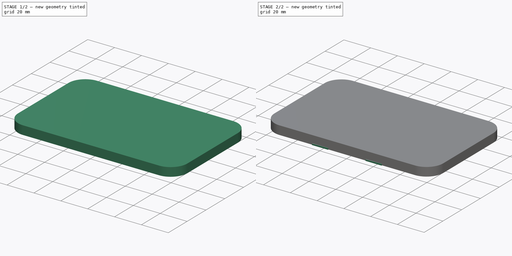
[diagram: build sequence overview — one tinted view per stage of 2, left to right]
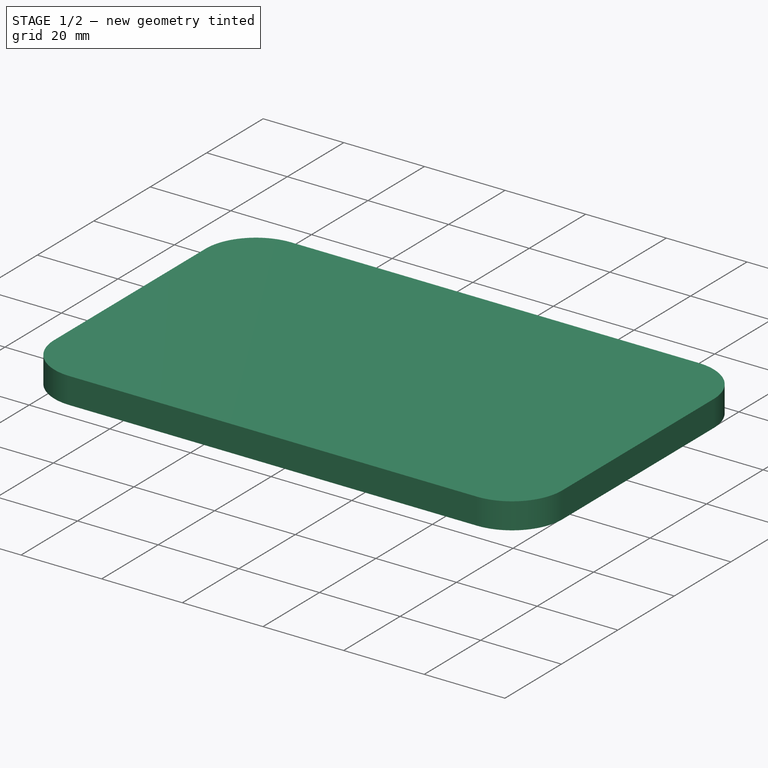
[diagram: stage 1 of 2 — iso view after this stage's code; geometry added in this stage tinted green]
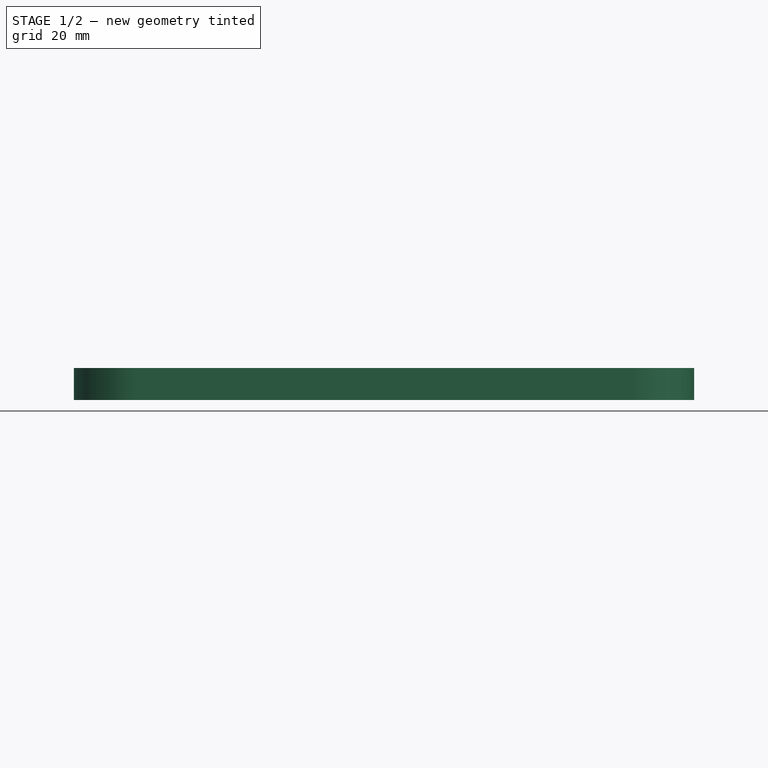
[diagram: stage 1 of 2 — front view after this stage's code; geometry added in this stage tinted green]
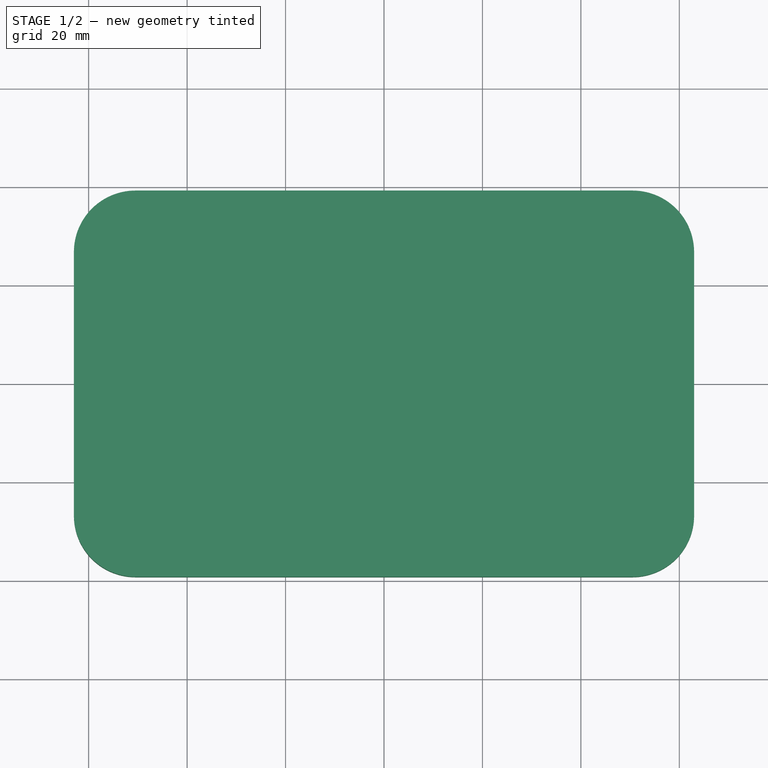
[diagram: stage 1 of 2 — top view after this stage's code; geometry added in this stage tinted green]
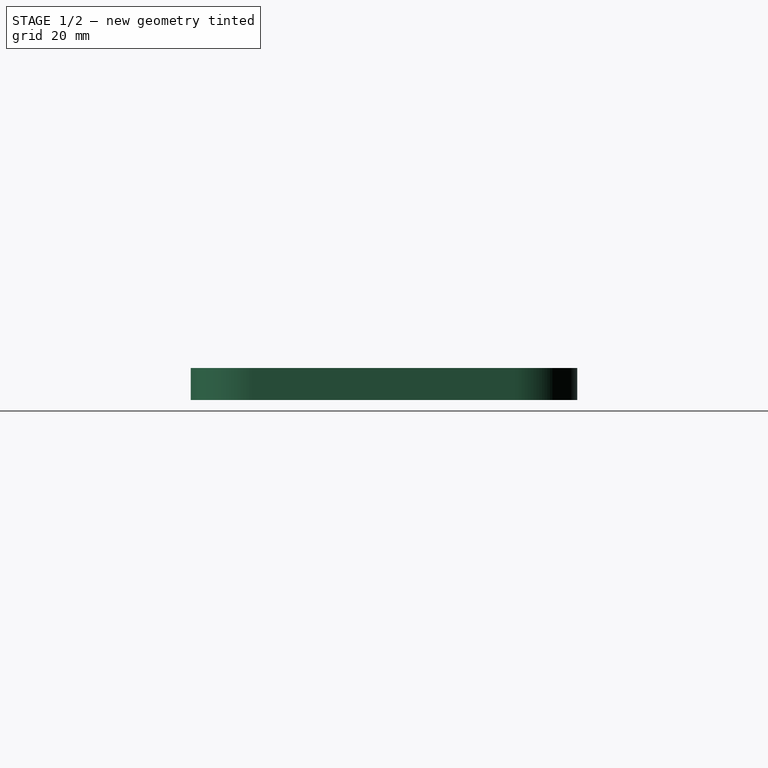
[diagram: stage 1 of 2 — right view after this stage's code; geometry added in this stage tinted green]
FCSTD DOCUMENT  (FreeCAD 0.21R33032 (Git))
Label: watermelon
License: All rights reserved
LicenseURL: https://en.wikipedia.org/wiki/All_rights_reserved
objects: PartDesign::Pad×3, Sketcher::SketchObject×2, PartDesign::Mirrored×1, PartDesign::Body×1
note: 10 computed .brp shape members not serialized (recipe doc carries the construction recipe); baked Part::Feature solids carry a one-line shape summary decoded from their .brp

FEATURE [Sketcher::SketchObject] Sketch
  FullyConstrained = true
  MapMode = 5
  Support = -> [XY_Plane]
  sketch-geometry (8):
    g0: LineSegment StartX=-50.5 StartY=39.25 StartZ=0 EndX=50.5 EndY=39.25 EndZ=0
    g1: LineSegment StartX=63 StartY=26.75 StartZ=0 EndX=63 EndY=-26.75 EndZ=0
    g2: LineSegment StartX=50.5 StartY=-39.25 StartZ=0 EndX=-50.5 EndY=-39.25 EndZ=0
    g3: LineSegment StartX=-63 StartY=-26.75 StartZ=0 EndX=-63 EndY=26.75 EndZ=0
    g4: ArcOfCircle CenterX=-50.5 CenterY=26.75 CenterZ=0 NormalX=0 NormalY=0 NormalZ=1 AngleXU=0 Radius=12.5 StartAngle=1.5708 EndAngle=3.14159
    g5: ArcOfCircle CenterX=50.5 CenterY=26.75 CenterZ=0 NormalX=0 NormalY=0 NormalZ=1 AngleXU=0 Radius=12.5 StartAngle=0 EndAngle=1.5708
    g6: ArcOfCircle CenterX=50.5 CenterY=-26.75 CenterZ=0 NormalX=0 NormalY=0 NormalZ=1 AngleXU=0 Radius=12.5 StartAngle=4.71239 EndAngle=6.28319
    g7: ArcOfCircle CenterX=-50.5 CenterY=-26.75 CenterZ=0 NormalX=0 NormalY=0 NormalZ=1 AngleXU=0 Radius=12.5 StartAngle=3.14159 EndAngle=4.71239
  constraints (19):
    c: Horizontal(g0)
    c: Horizontal(g2)
    c: Vertical(g1)
    c: Vertical(g3)
    c: Tangent(g0,g4) = 1.5708
    c: Tangent(g3,g4) = 1.5708
    c: Tangent(g0,g5) = 1.5708
    c: Tangent(g1,g5) = 1.5708
    c: Tangent(g1,g6) = 1.5708
    c: Tangent(g2,g6) = 1.5708
    c: Tangent(g2,g7) = 1.5708
    c: Tangent(g3,g7) = 1.5708
    c: Radius(g7) = 12.5
    c: Equal(g5,g6)
    c: Equal(g6,g7)
    c: Equal(g7,g4)
    c: DistanceX(g3,g1) = 126
    c: DistanceY(g2,g0) = 78.5
    c: Symmetric(g0,g2,g-1)
FEATURE [PartDesign::Pad] Pad
  Direction = (0,0,1)
  Length = 1
  Length2 = 10
  Profile = -> Sketch
  ReferenceAxis = -> Sketch [N_Axis]
  Type = 0
FEATURE [PartDesign::Pad] Pad001
  BaseFeature = -> Pad
  Direction = (0,0,1)
  Length = 6.5
  Length2 = 10
  Profile = -> Sketch
  ReferenceAxis = -> Sketch [N_Axis]
  Type = 0
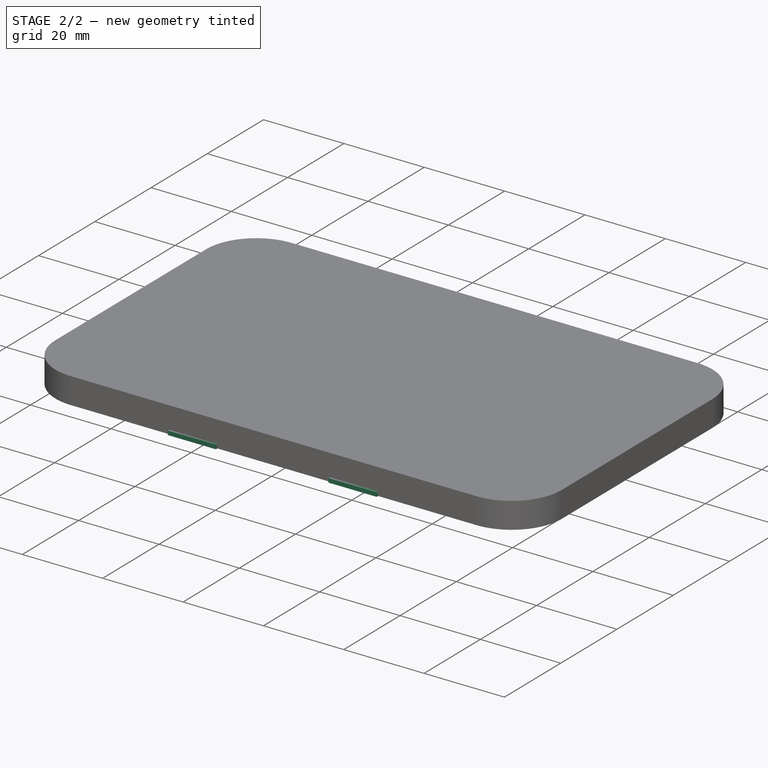
[diagram: stage 2 of 2 — iso view after this stage's code; geometry added in this stage tinted green]
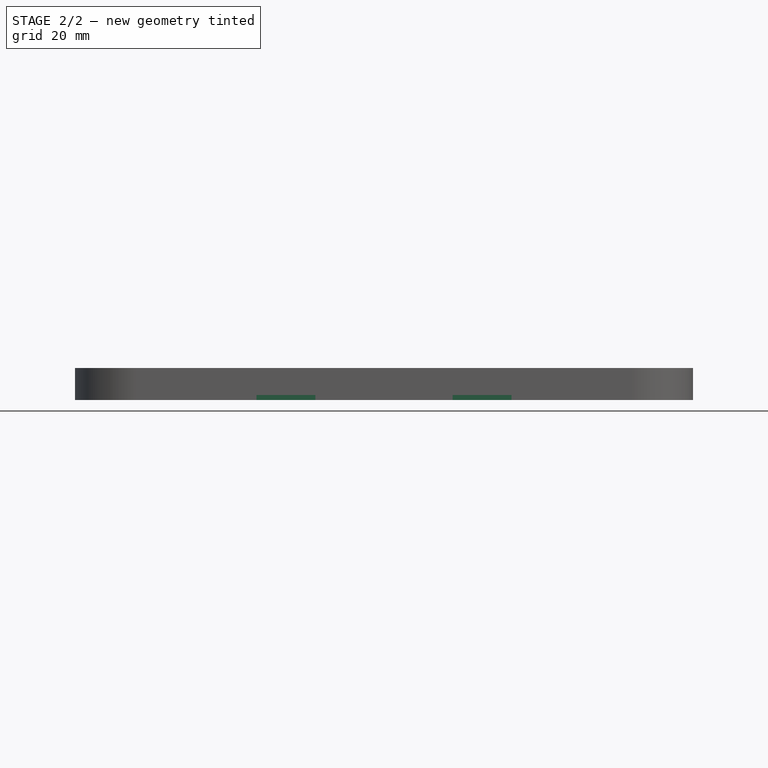
[diagram: stage 2 of 2 — front view after this stage's code; geometry added in this stage tinted green]
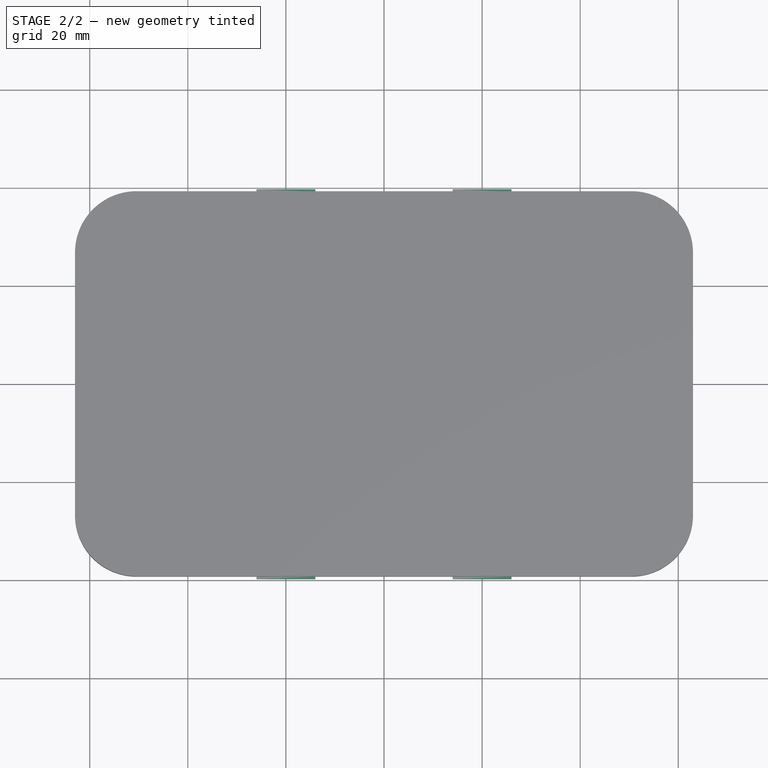
[diagram: stage 2 of 2 — top view after this stage's code; geometry added in this stage tinted green]
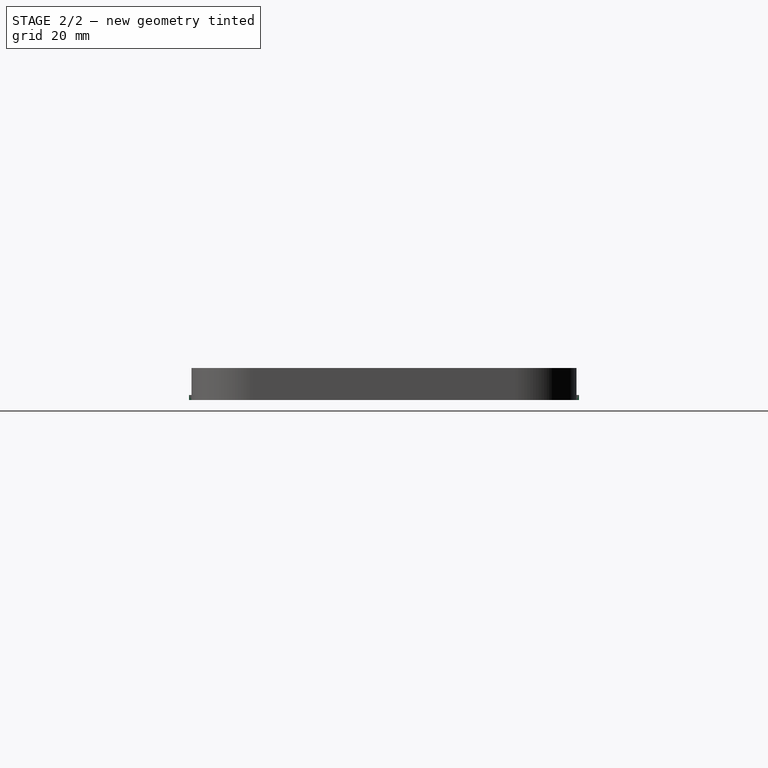
[diagram: stage 2 of 2 — right view after this stage's code; geometry added in this stage tinted green]
FEATURE [Sketcher::SketchObject] Sketch001
  ExternalGeometry = -> [Pad001]
  FullyConstrained = true
  MapMode = 5
  Placement = pos=(0,39.25,0) rot=(0,0.707107,0.707107;3.14159rad)
  Support = -> [Pad001]
  sketch-geometry (8):
    g0: LineSegment StartX=-26 StartY=0 StartZ=0 EndX=-14 EndY=0 EndZ=0
    g1: LineSegment StartX=-14 StartY=0 StartZ=0 EndX=-14 EndY=1 EndZ=0
    g2: LineSegment StartX=-14 StartY=1 StartZ=0 EndX=-26 EndY=1 EndZ=0
    g3: LineSegment StartX=-26 StartY=1 StartZ=0 EndX=-26 EndY=0 EndZ=0
    g4: LineSegment StartX=14 StartY=0 StartZ=0 EndX=26 EndY=0 EndZ=0
    g5: LineSegment StartX=26 StartY=0 StartZ=0 EndX=26 EndY=1 EndZ=0
    g6: LineSegment StartX=26 StartY=1 StartZ=0 EndX=14 EndY=1 EndZ=0
    g7: LineSegment StartX=14 StartY=1 StartZ=0 EndX=14 EndY=0 EndZ=0
  constraints (24):
    c: Coincident(g0,g1)
    c: Coincident(g1,g2)
    c: Coincident(g2,g3)
    c: Coincident(g3,g0)
    c: Horizontal(g0)
    c: Horizontal(g2)
    c: Vertical(g1)
    c: Vertical(g3)
    c: PointOnObject(g0,g-1)
    c: DistanceX(g0,g0) = 12
    c: DistanceY(g1,g1) = 1
    c: DistanceX(g0,g-1) = 14
    c: Coincident(g4,g5)
    c: Coincident(g5,g6)
    c: Coincident(g6,g7)
    c: Coincident(g7,g4)
    c: Horizontal(g4)
    c: Horizontal(g6)
    c: Vertical(g5)
    c: Vertical(g7)
    c: PointOnObject(g4,g-1)
    c: Equal(g5,g1)
    c: Equal(g6,g2)
    c: DistanceX(g-1,g4) = 14
FEATURE [PartDesign::Pad] Pad002
  BaseFeature = -> Pad001
  Direction = (0,1,-2e-16)
  Length = 0.5
  Length2 = 10
  Profile = -> Sketch001
  ReferenceAxis = -> Sketch001 [N_Axis]
  Type = 0
FEATURE [PartDesign::Mirrored] Mirrored
  BaseFeature = -> Pad002
  MirrorPlane = -> XZ_Plane
  Originals = -> [Pad002]
FEATURE [PartDesign::Body] Body
  Group = -> [Sketch,Pad,Pad001,Sketch001,Pad002,Mirrored]
  Origin = -> Origin
  Tip = -> Mirrored
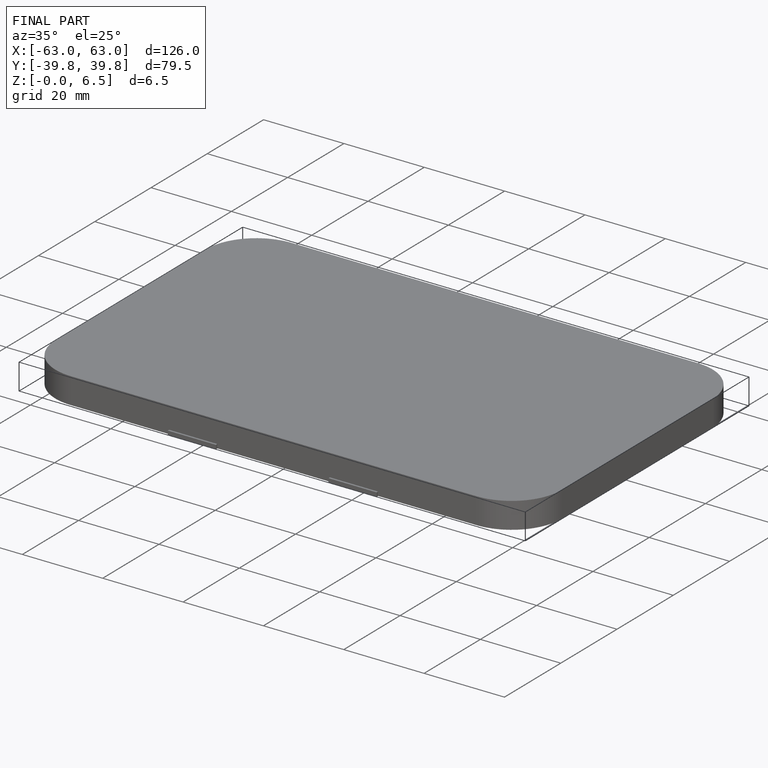
[diagram: finished part — iso view with bounding-box wireframe]
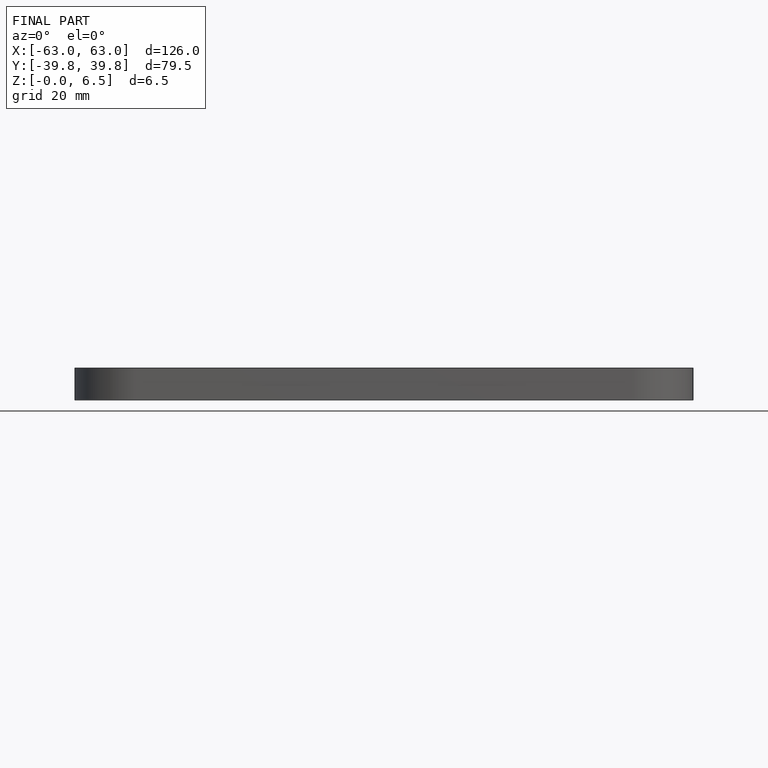
[diagram: finished part — front view with bounding-box wireframe]
